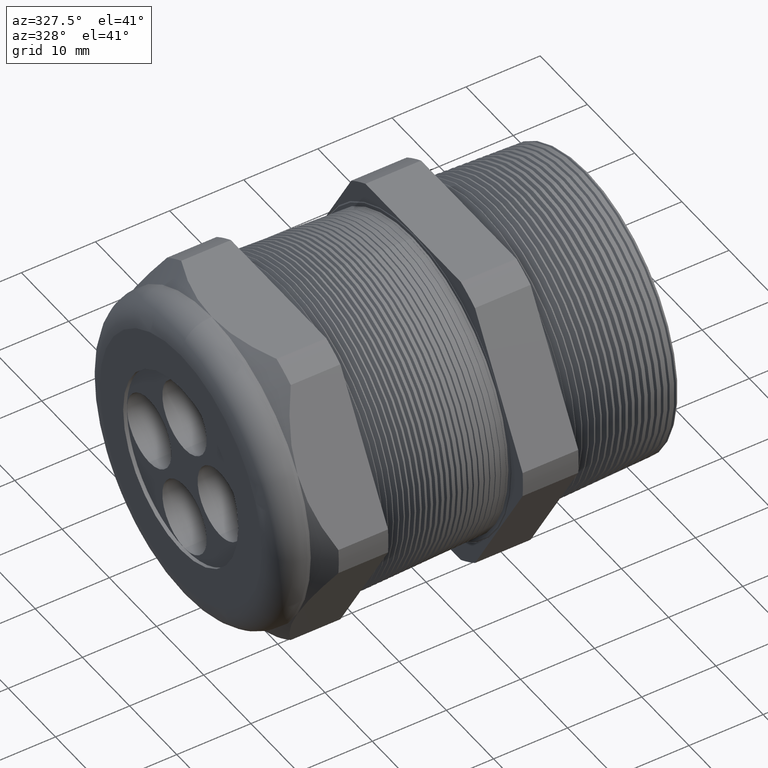
[diagram: clean part render]
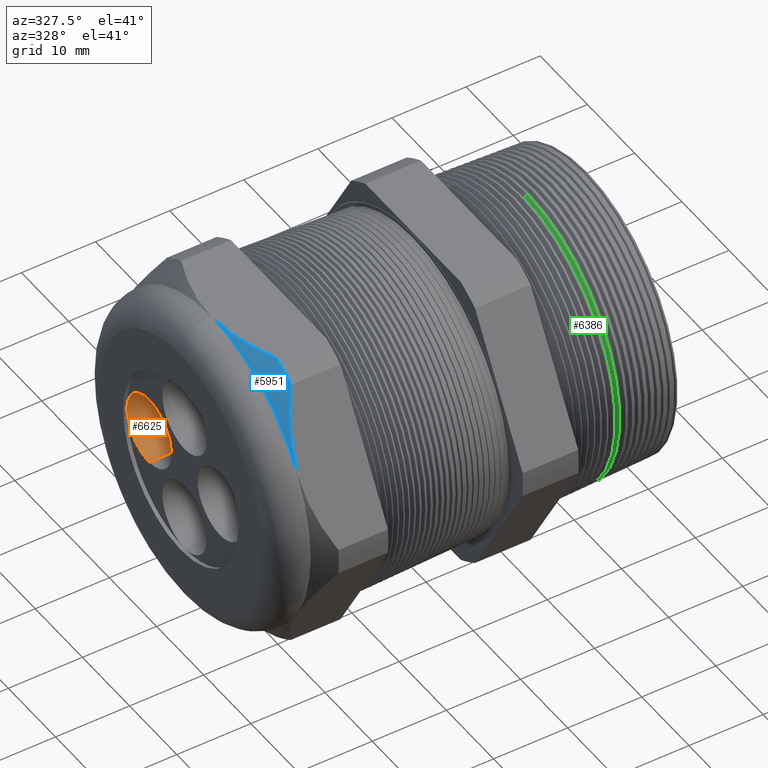
[diagram: same view with three faces highlighted in distinct colors, each labeled with its STEP entity id]
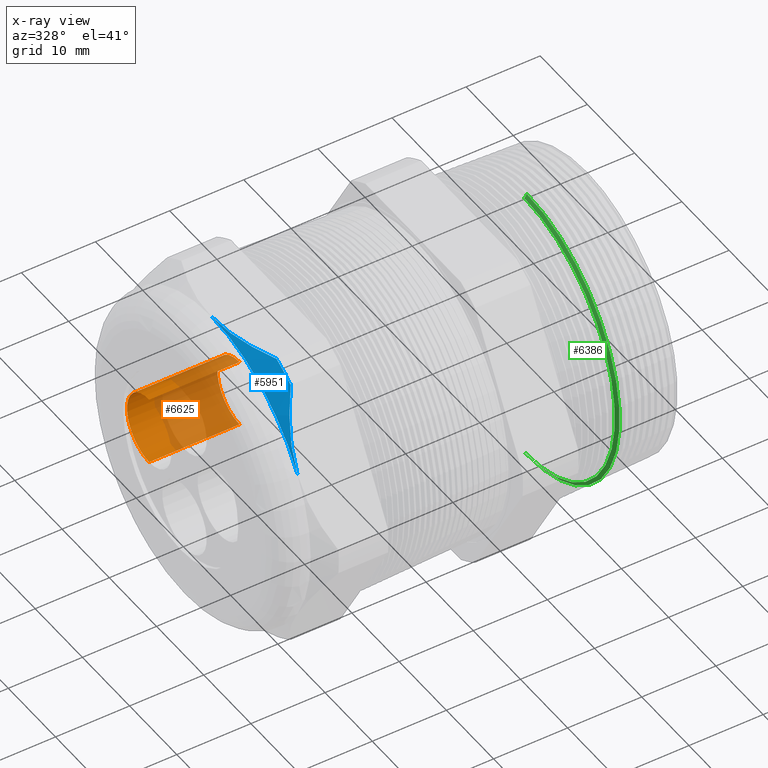
[diagram: x-ray of the same camera — body ghosted, the three highlighted faces saturated]
A machine part, auxiliary view with three faces highlighted in distinct colors.
The next image is the same camera in x-ray (body ghosted, the three faces saturated) — at least one of them is partly hidden behind the body in this view.
Their STEP definitions:

[orange] entity #6625 — the highlighted cylindrical surface (partial cylindrical patch) has radius 4.699 mm, axis along (-1, 0, 0).
#3332 = DIRECTION ( 'NONE',  ( 0.0000000000000000000, -1.000000000000000000, 1.047445008332814600E-014 ) ) ;
#3333 = DIRECTION ( 'NONE',  ( -1.000000000000000000, 0.0000000000000000000, 0.0000000000000000000 ) ) ;
#3334 = CARTESIAN_POINT ( 'NONE',  ( -1.339999999999999900, 0.2942599999999999100, -3.082211681520139800E-015 ) ) ;
#3335 = AXIS2_PLACEMENT_3D ( 'NONE', #3334, #3333, #3332 ) ;
#3336 = CIRCLE ( 'NONE', #3335, 0.1850000000000000000 ) ;
#3417 = DIRECTION ( 'NONE',  ( 0.0000000000000000000, -1.000000000000000000, 1.047445008332814600E-014 ) ) ;
#3418 = DIRECTION ( 'NONE',  ( -1.000000000000000000, 0.0000000000000000000, 0.0000000000000000000 ) ) ;
#3419 = AXIS2_PLACEMENT_3D ( 'NONE', #3425, #3418, #3417 ) ;
#3420 = CIRCLE ( 'NONE', #3419, 0.1850000000000000000 ) ;
#3425 = CARTESIAN_POINT ( 'NONE',  ( -1.820000000000000100, 0.2942599999999999100, -3.082211681520139800E-015 ) ) ;
#3456 = DIRECTION ( 'NONE',  ( 0.0000000000000000000, 0.0000000000000000000, 1.000000000000000000 ) ) ;
#3457 = DIRECTION ( 'NONE',  ( -1.000000000000000000, 0.0000000000000000000, 0.0000000000000000000 ) ) ;
#3458 = CARTESIAN_POINT ( 'NONE',  ( -1.339999999999999900, 0.2942599999999999100, -3.082211681520139800E-015 ) ) ;
#3459 = AXIS2_PLACEMENT_3D ( 'NONE', #3458, #3457, #3456 ) ;
#3460 = CYLINDRICAL_SURFACE ( 'NONE', #3459, 0.1850000000000000000 ) ;
#3461 = FACE_OUTER_BOUND ( 'NONE', #6626, .T. ) ;
#3545 = CARTESIAN_POINT ( 'NONE',  ( -1.339999999999999900, 0.2942599999999999700, -0.1850000000000030800 ) ) ;
#3571 = DIRECTION ( 'NONE',  ( -1.000000000000000000, 0.0000000000000000000, 0.0000000000000000000 ) ) ;
#3572 = VECTOR ( 'NONE', #3571, 39.37007874015748100 ) ;
#3573 = CARTESIAN_POINT ( 'NONE',  ( -1.339999999999999900, 0.2942599999999999100, 0.1849999999999969400 ) ) ;
#3574 = LINE ( 'NONE', #3573, #3572 ) ;
#3575 = CARTESIAN_POINT ( 'NONE',  ( -1.820000000000000100, 0.2942599999999999100, 0.1849999999999969400 ) ) ;
#3624 = DIRECTION ( 'NONE',  ( -1.000000000000000000, 0.0000000000000000000, 0.0000000000000000000 ) ) ;
#3625 = VECTOR ( 'NONE', #3624, 39.37007874015748100 ) ;
#3626 = CARTESIAN_POINT ( 'NONE',  ( -1.339999999999999900, 0.2942599999999999700, -0.1850000000000030800 ) ) ;
#3627 = LINE ( 'NONE', #3626, #3625 ) ;
#3628 = CARTESIAN_POINT ( 'NONE',  ( -1.820000000000000100, 0.2942599999999999700, -0.1850000000000030800 ) ) ;
#3629 = CARTESIAN_POINT ( 'NONE',  ( -1.339999999999999900, 0.2942599999999999100, 0.1849999999999969400 ) ) ;
#6539 = EDGE_CURVE ( 'NONE', #6709, #6688, #3336, .T. ) ;
#6574 = ORIENTED_EDGE ( 'NONE', *, *, #6707, .T. ) ;
#6575 = ORIENTED_EDGE ( 'NONE', *, *, #6612, .T. ) ;
#6612 = EDGE_CURVE ( 'NONE', #6705, #6710, #3420, .T. ) ;
#6625 = ADVANCED_FACE ( 'NONE', ( #3461 ), #3460, .F. ) ;
#6626 = EDGE_LOOP ( 'NONE', ( #6627, #6628, #6574, #6575 ) ) ;
#6627 = ORIENTED_EDGE ( 'NONE', *, *, #6711, .F. ) ;
#6628 = ORIENTED_EDGE ( 'NONE', *, *, #6539, .F. ) ;
#6688 = VERTEX_POINT ( 'NONE', #3545 ) ;
#6705 = VERTEX_POINT ( 'NONE', #3575 ) ;
#6707 = EDGE_CURVE ( 'NONE', #6709, #6705, #3574, .T. ) ;
#6709 = VERTEX_POINT ( 'NONE', #3629 ) ;
#6710 = VERTEX_POINT ( 'NONE', #3628 ) ;
#6711 = EDGE_CURVE ( 'NONE', #6688, #6710, #3627, .T. ) ;

[blue] entity #5951 — the highlighted conical surface has half-angle 45 deg.
#537 = CARTESIAN_POINT ( 'NONE',  ( -1.674645669291338300, 0.0000000000000000000, 0.8249999999999998400 ) ) ;
#1998 = CARTESIAN_POINT ( 'NONE',  ( -1.583895669291338200, -0.3974582525247157300, 0.8249999999999998400 ) ) ;
#2027 = CARTESIAN_POINT ( 'NONE',  ( -1.611338430126444200, -0.5473561059063409800, 0.7019514147371663800 ) ) ;
#2028 = CARTESIAN_POINT ( 'NONE',  ( -1.583895669291338400, -0.5157418318598044900, 0.7567089436301736000 ) ) ;
#2029 = CARTESIAN_POINT ( 'NONE',  ( -1.674645669291338300, -0.7144709581221619900, 0.4124999999999998100 ) ) ;
#2030 = B_SPLINE_CURVE_WITH_KNOTS ( 'NONE', 3,
 ( #2028, #2027, #2088, #2087, #2086, #2085, #2084, #2083, #2082, #2081 ),
 .UNSPECIFIED., .F., .F.,
 ( 4, 2, 2, 2, 4 ),
 ( 2.483247851922047800E-007, 0.005180948890086923800, 0.007771299172737787400, 0.009066474314063216100, 0.01036164945538864600 ),
 .UNSPECIFIED. ) ;
#2031 = CARTESIAN_POINT ( 'NONE',  ( -1.583895669291338400, -0.5157418318598044900, 0.7567089436301736000 ) ) ;
#2049 = DIRECTION ( 'NONE',  ( 0.0000000000000000000, 0.0000000000000000000, -1.000000000000000000 ) ) ;
#2050 = DIRECTION ( 'NONE',  ( 1.000000000000000000, 0.0000000000000000000, 0.0000000000000000000 ) ) ;
#2051 = CARTESIAN_POINT ( 'NONE',  ( -1.583895669291338400, 0.0000000000000000000, 0.0000000000000000000 ) ) ;
#2052 = AXIS2_PLACEMENT_3D ( 'NONE', #2051, #2050, #2049 ) ;
#2053 = CIRCLE ( 'NONE', #2052, 0.9157500000000000600 ) ;
#2081 = CARTESIAN_POINT ( 'NONE',  ( -1.674645669291338300, -0.7144709581221619900, 0.4124999999999998100 ) ) ;
#2082 = CARTESIAN_POINT ( 'NONE',  ( -1.674645669291338100, -0.7058686793890304200, 0.4273995838266528800 ) ) ;
#2083 = CARTESIAN_POINT ( 'NONE',  ( -1.674101283086534100, -0.6971877207736741900, 0.4424354452068528500 ) ) ;
#2084 = CARTESIAN_POINT ( 'NONE',  ( -1.671939090580068000, -0.6799402181191398500, 0.4723089961081849400 ) ) ;
#2085 = CARTESIAN_POINT ( 'NONE',  ( -1.670328354707565800, -0.6713824640496748300, 0.4871314609551776800 ) ) ;
#2086 = CARTESIAN_POINT ( 'NONE',  ( -1.664003129424731900, -0.6458952435726331700, 0.5312766217651239100 ) ) ;
#2087 = CARTESIAN_POINT ( 'NONE',  ( -1.657795156961973100, -0.6291518768872979000, 0.5602769835538803400 ) ) ;
#2088 = CARTESIAN_POINT ( 'NONE',  ( -1.634021755025360400, -0.5795634430641813900, 0.6461666704032855700 ) ) ;
#2190 = CARTESIAN_POINT ( 'NONE',  ( -1.583895669291338200, -0.3974582525247157300, 0.8249999999999998400 ) ) ;
#2191 = CARTESIAN_POINT ( 'NONE',  ( -1.597479196282689100, -0.3661615949177475800, 0.8249999999999995100 ) ) ;
#2192 = CARTESIAN_POINT ( 'NONE',  ( -1.610040375439864900, -0.3342307359203791600, 0.8249999999999998400 ) ) ;
#2193 = CARTESIAN_POINT ( 'NONE',  ( -1.632430573475722300, -0.2690253303980847400, 0.8249999999999998400 ) ) ;
#2194 = CARTESIAN_POINT ( 'NONE',  ( -1.642114605925984800, -0.2361608013186457000, 0.8249999999999995100 ) ) ;
#2195 = CARTESIAN_POINT ( 'NONE',  ( -1.665889473442875700, -0.1366528151466514000, 0.8249999999999998400 ) ) ;
#2196 = CARTESIAN_POINT ( 'NONE',  ( -1.674645669291338100, -0.06908501165149871800, 0.8249999999999994000 ) ) ;
#2197 = CARTESIAN_POINT ( 'NONE',  ( -1.674645669291338300, 0.0000000000000000000, 0.8249999999999998400 ) ) ;
#2212 = B_SPLINE_CURVE_WITH_KNOTS ( 'NONE', 3,
 ( #2197, #2196, #2195, #2194, #2193, #2192, #2191, #2190 ),
 .UNSPECIFIED., .F., .F.,
 ( 4, 2, 2, 4 ),
 ( 0.02628477249763028900, 0.03145169048429692600, 0.03403514947763024200, 0.03661860847096356400 ),
 .UNSPECIFIED. ) ;
#2318 = DIRECTION ( 'NONE',  ( 0.0000000000000000000, 0.0000000000000000000, -1.000000000000000000 ) ) ;
#2319 = DIRECTION ( 'NONE',  ( 1.000000000000000000, 0.0000000000000000000, 0.0000000000000000000 ) ) ;
#2320 = CARTESIAN_POINT ( 'NONE',  ( -1.674645669291338300, 0.0000000000000000000, 0.0000000000000000000 ) ) ;
#2321 = AXIS2_PLACEMENT_3D ( 'NONE', #2320, #2319, #2318 ) ;
#2322 = CIRCLE ( 'NONE', #2321, 0.8249999999999998400 ) ;
#2548 = DIRECTION ( 'NONE',  ( 0.0000000000000000000, 0.0000000000000000000, 1.000000000000000000 ) ) ;
#2549 = DIRECTION ( 'NONE',  ( 1.000000000000000000, 0.0000000000000000000, 0.0000000000000000000 ) ) ;
#2550 = AXIS2_PLACEMENT_3D ( 'NONE', #2557, #2549, #2548 ) ;
#2552 = CONICAL_SURFACE ( 'NONE', #2550, 0.8249999999999998400, 0.7853981633974501700 ) ;
#2553 = FACE_OUTER_BOUND ( 'NONE', #5952, .T. ) ;
#2557 = CARTESIAN_POINT ( 'NONE',  ( -1.674645669291338300, 0.0000000000000000000, 0.0000000000000000000 ) ) ;
#4880 = VERTEX_POINT ( 'NONE', #537 ) ;
#5645 = VERTEX_POINT ( 'NONE', #1998 ) ;
#5647 = EDGE_CURVE ( 'NONE', #5645, #5658, #2053, .T. ) ;
#5658 = VERTEX_POINT ( 'NONE', #2031 ) ;
#5660 = EDGE_CURVE ( 'NONE', #5658, #5661, #2030, .T. ) ;
#5661 = VERTEX_POINT ( 'NONE', #2029 ) ;
#5712 = EDGE_CURVE ( 'NONE', #4880, #5645, #2212, .T. ) ;
#5786 = EDGE_CURVE ( 'NONE', #4880, #5661, #2322, .T. ) ;
#5931 = ORIENTED_EDGE ( 'NONE', *, *, #5712, .F. ) ;
#5932 = ORIENTED_EDGE ( 'NONE', *, *, #5786, .T. ) ;
#5933 = ORIENTED_EDGE ( 'NONE', *, *, #5660, .F. ) ;
#5951 = ADVANCED_FACE ( 'NONE', ( #2553 ), #2552, .T. ) ;
#5952 = EDGE_LOOP ( 'NONE', ( #5953, #5931, #5932, #5933 ) ) ;
#5953 = ORIENTED_EDGE ( 'NONE', *, *, #5647, .F. ) ;

[green] entity #6386 — the highlighted conical surface has half-angle 58 deg.
#473 = CARTESIAN_POINT ( 'NONE',  ( -0.001359467828463184800, 0.0000000000000000000, 0.7739410592660152000 ) ) ;
#474 = DIRECTION ( 'NONE',  ( 0.5299192642331924700, 1.038559386480983500E-016, 0.8480480961564337300 ) ) ;
#475 = VECTOR ( 'NONE', #474, 39.37007874015748100 ) ;
#476 = CARTESIAN_POINT ( 'NONE',  ( -0.01373702801092103300, 9.235463469870536500E-017, 0.7541328223207397500 ) ) ;
#477 = LINE ( 'NONE', #476, #475 ) ;
#483 = CARTESIAN_POINT ( 'NONE',  ( -0.01373702801092103300, 0.0000000000000000000, 0.7541328223207397500 ) ) ;
#484 = CARTESIAN_POINT ( 'NONE',  ( -0.01373702801092103300, 9.361745374026721500E-017, -0.7541328223207397500 ) ) ;
#689 = DIRECTION ( 'NONE',  ( 0.5299192642331924700, 0.0000000000000000000, -0.8480480961564337300 ) ) ;
#690 = VECTOR ( 'NONE', #689, 39.37007874015748100 ) ;
#691 = CARTESIAN_POINT ( 'NONE',  ( -0.01373702801092103300, 0.0000000000000000000, -0.7541328223207397500 ) ) ;
#692 = LINE ( 'NONE', #691, #690 ) ;
#697 = CARTESIAN_POINT ( 'NONE',  ( -0.001359467828463184800, 9.478044409588375800E-017, -0.7739410592660152000 ) ) ;
#1321 = DIRECTION ( 'NONE',  ( 0.0000000000000000000, 0.0000000000000000000, -1.000000000000000000 ) ) ;
#1322 = DIRECTION ( 'NONE',  ( -1.000000000000000000, 0.0000000000000000000, 0.0000000000000000000 ) ) ;
#1323 = CARTESIAN_POINT ( 'NONE',  ( -0.001359467828463184800, 0.0000000000000000000, 0.0000000000000000000 ) ) ;
#1324 = AXIS2_PLACEMENT_3D ( 'NONE', #1323, #1322, #1321 ) ;
#1325 = CIRCLE ( 'NONE', #1324, 0.7739410592660152000 ) ;
#3089 = CONICAL_SURFACE ( 'NONE', #3152, 0.7541328223207397500, 1.012290966156725900 ) ;
#3090 = FACE_OUTER_BOUND ( 'NONE', #6387, .T. ) ;
#3091 = DIRECTION ( 'NONE',  ( 0.0000000000000000000, 0.0000000000000000000, -1.000000000000000000 ) ) ;
#3092 = DIRECTION ( 'NONE',  ( 1.000000000000000000, 0.0000000000000000000, 0.0000000000000000000 ) ) ;
#3093 = AXIS2_PLACEMENT_3D ( 'NONE', #3098, #3092, #3091 ) ;
#3094 = CIRCLE ( 'NONE', #3093, 0.7541328223207397500 ) ;
#3098 = CARTESIAN_POINT ( 'NONE',  ( -0.01373702801092103300, 0.0000000000000000000, 0.0000000000000000000 ) ) ;
#3149 = DIRECTION ( 'NONE',  ( 0.0000000000000000000, 0.0000000000000000000, -1.000000000000000000 ) ) ;
#3150 = DIRECTION ( 'NONE',  ( 1.000000000000000000, 0.0000000000000000000, 0.0000000000000000000 ) ) ;
#3151 = CARTESIAN_POINT ( 'NONE',  ( -0.01373702801092103300, 0.0000000000000000000, 0.0000000000000000000 ) ) ;
#3152 = AXIS2_PLACEMENT_3D ( 'NONE', #3151, #3150, #3149 ) ;
#4842 = VERTEX_POINT ( 'NONE', #484 ) ;
#4843 = VERTEX_POINT ( 'NONE', #483 ) ;
#4847 = EDGE_CURVE ( 'NONE', #4843, #4848, #477, .T. ) ;
#4848 = VERTEX_POINT ( 'NONE', #473 ) ;
#4966 = VERTEX_POINT ( 'NONE', #697 ) ;
#4970 = EDGE_CURVE ( 'NONE', #4842, #4966, #692, .T. ) ;
#5312 = EDGE_CURVE ( 'NONE', #4966, #4848, #1325, .T. ) ;
#6383 = EDGE_CURVE ( 'NONE', #4843, #4842, #3094, .T. ) ;
#6386 = ADVANCED_FACE ( 'NONE', ( #3090 ), #3089, .T. ) ;
#6387 = EDGE_LOOP ( 'NONE', ( #6388, #6389, #6441, #6442 ) ) ;
#6388 = ORIENTED_EDGE ( 'NONE', *, *, #4847, .F. ) ;
#6389 = ORIENTED_EDGE ( 'NONE', *, *, #6383, .T. ) ;
#6441 = ORIENTED_EDGE ( 'NONE', *, *, #4970, .T. ) ;
#6442 = ORIENTED_EDGE ( 'NONE', *, *, #5312, .T. ) ;